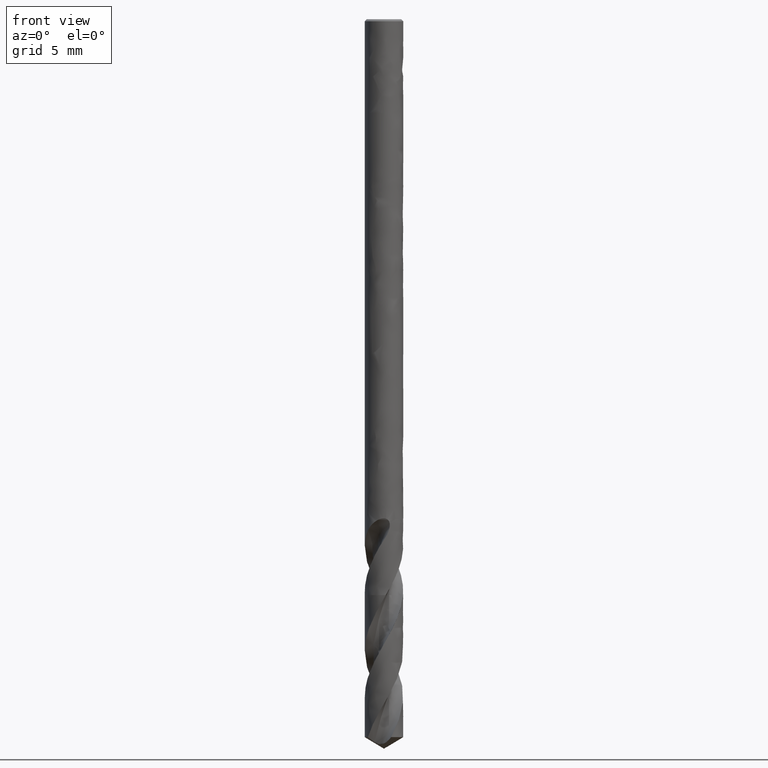
[diagram: clean part render]
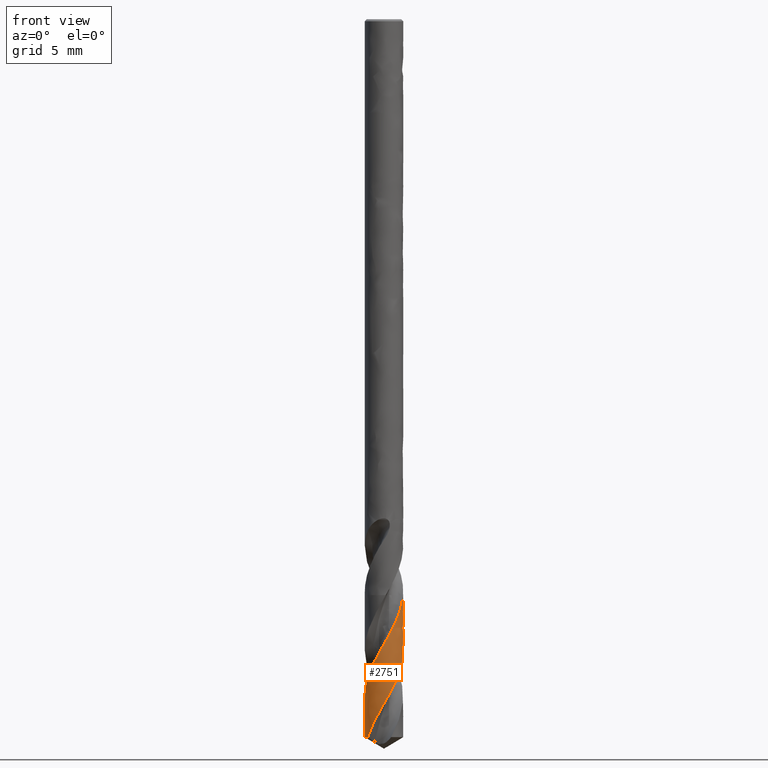
[diagram: same view with one face highlighted and labeled with its STEP entity id]
A machine part, front view. The second image highlights one B-rep face of the part: STEP entity #2751.
In plain terms, the highlighted face is a freeform B-spline surface patch.
Its self-contained STEP definition (entity closure, byte-faithful):
#1727 = VERTEX_POINT('', #1728);
#1728 = CARTESIAN_POINT('', (0.993616073432345, -0.112814443299109, -30.));
#1734 = EDGE_CURVE('', #1735, #1727, #1737, .T.);
#1735 = VERTEX_POINT('', #1736);
#1736 = CARTESIAN_POINT('', (-0.0892022746884696, 0.99601353112817, -30.));
#1737 = CIRCLE('', #1738, 1.);
#1738 = AXIS2_PLACEMENT_3D('', #1739, #1740, #1741);
#1739 = CARTESIAN_POINT('', (4.16333634234435E-17, 2.08677037926169E-15, -30.));
#1740 = DIRECTION('', (3.74939945665465E-33, 6.12323399573677E-17, -1.));
#1741 = DIRECTION('', (-1., -1.88567840583293E-16, -1.52958495762775E-32));
#2527 = EDGE_CURVE('', #1735, #2528, #2530, .T.);
#2528 = VERTEX_POINT('', #2529);
#2529 = CARTESIAN_POINT('', (-0.839977441181837, -0.542621321278118, -37.3991393809724));
#2530 = B_SPLINE_CURVE_WITH_KNOTS('', 3, (#2531, #2532, #2533, #2534, #2535, #2536, #2537, #2538, #2539, #2540, #2541, #2542, #2543, #2544, #2545, #2546, #2547, #2548, #2549, #2550, #2551, #2552, #2553, #2554, #2555, #2556, #2557, #2558, #2559, #2560, #2561, #2562, #2563, #2564, #2565, #2566, #2567, #2568, #2569, #2570, #2571, #2572, #2573, #2574, #2575, #2576, #2577, #2578, #2579, #2580, #2581, #2582, #2583, #2584, #2585, #2586, #2587, #2588, #2589, #2590, #2591, #2592, #2593, #2594, #2595, #2596, #2597, #2598, #2599, #2600, #2601, #2602, #2603, #2604, #2605, #2606, #2607, #2608, #2609, #2610, #2611, #2612, #2613, #2614, #2615, #2616, #2617, #2618, #2619, #2620, #2621, #2622, #2623, #2624, #2625, #2626, #2627, #2628, #2629, #2630, #2631, #2632, #2633, #2634, #2635, #2636), .UNSPECIFIED., .F., .U., (4, 3, 3, 3, 3, 3, 3, 3, 3, 3, 3, 3, 3, 3, 3, 3, 3, 3, 3, 3, 3, 3, 3, 3, 3, 3, 3, 3, 3, 3, 3, 3, 3, 3, 3, 4), (2.97669446461167, 3.15364905319043, 3.19258730418406, 3.48914147681884, 3.78546157126732, 4.08156162070981, 4.37745204709669, 4.67314080025369, 4.96863289335033, 5.26393132598247, 5.55903703589848, 5.85394856897462, 6.14866267888719, 6.27982892414923, 6.30576980557412, 6.33171729404927, 6.62828182424694, 6.92461325520883, 7.22072584724964, 7.51663016142348, 7.8123340024352, 8.10784282046592, 8.40315954869738, 8.69828527990067, 8.99321889331769, 9.28795715468895, 9.41912876083279, 9.47747288268123, 9.50342483867528, 9.79997830267006, 10.096301130146, 10.3924072512718, 10.688307181646, 10.9840085500274, 11.2795167071484, 11.496949580724), .UNSPECIFIED.);
#2531 = CARTESIAN_POINT('', (-0.0892022746884696, 0.99601353112817, -30.));
#2532 = CARTESIAN_POINT('', (-0.059957842391235, 0.998632642015079, -30.0511577705177));
#2533 = CARTESIAN_POINT('', (-0.0305906427086898, 0.999963037003665, -30.1023330930471));
#2534 = CARTESIAN_POINT('', (-0.00123316522496211, 0.999999239651516, -30.1534931482828));
#2535 = CARTESIAN_POINT('', (0.00522684712047916, 1.00000720592015, -30.1647507431698));
#2536 = CARTESIAN_POINT('', (0.0116869132965708, 0.999952571533377, -30.1760085254703));
#2537 = CARTESIAN_POINT('', (0.0181456684873322, 0.999835353803391, -30.1872662342511));
#2538 = CARTESIAN_POINT('', (0.0673356231712245, 0.998942622207929, -30.2730050753155));
#2539 = CARTESIAN_POINT('', (0.116486497620108, 0.994409491159285, -30.3588049468948));
#2540 = CARTESIAN_POINT('', (0.164999118670596, 0.986293714284914, -30.4445502513908));
#2541 = CARTESIAN_POINT('', (0.213473447404215, 0.978184343411558, -30.5302278748112));
#2542 = CARTESIAN_POINT('', (0.26137487109197, 0.966487250067769, -30.6159663155297));
#2543 = CARTESIAN_POINT('', (0.308121052008433, 0.951347159195433, -30.7016503269625));
#2544 = CARTESIAN_POINT('', (0.354832519573177, 0.936218311237261, -30.7872707101123));
#2545 = CARTESIAN_POINT('', (0.400452169392193, 0.917631622836501, -30.8729517751763));
#2546 = CARTESIAN_POINT('', (0.444426886355997, 0.895815127514703, -30.9585786287513));
#2547 = CARTESIAN_POINT('', (0.488370471563637, 0.874014077108975, -31.044144863077));
#2548 = CARTESIAN_POINT('', (0.530729515321001, 0.848959019028924, -31.1297715621984));
#2549 = CARTESIAN_POINT('', (0.570991804114125, 0.820955759852217, -31.215344165951));
#2550 = CARTESIAN_POINT('', (0.611226650904742, 0.792971587158957, -31.3008584450609));
#2551 = CARTESIAN_POINT('', (0.649420519804618, 0.762006462942727, -31.3864330597638));
#2552 = CARTESIAN_POINT('', (0.685112895614836, 0.728436902045921, -31.4719537452119));
#2553 = CARTESIAN_POINT('', (0.72078153273122, 0.694889667976909, -31.5574175515836));
#2554 = CARTESIAN_POINT('', (0.753998845217947, 0.658697434787189, -31.642941506857));
#2555 = CARTESIAN_POINT('', (0.784365438441386, 0.620299007720193, -31.7284117449621));
#2556 = CARTESIAN_POINT('', (0.814712129918935, 0.581925746325632, -31.8138259673348));
#2557 = CARTESIAN_POINT('', (0.842251717208539, 0.541298803474586, -31.8993001347714));
#2558 = CARTESIAN_POINT('', (0.866654196388625, 0.498909314286665, -31.9847206737153));
#2559 = CARTESIAN_POINT('', (0.891040749605183, 0.456547490052529, -32.0700854640455));
#2560 = CARTESIAN_POINT('', (0.91232615160676, 0.412370131130284, -32.155510108261));
#2561 = CARTESIAN_POINT('', (0.930256493114442, 0.366909875880225, -32.2408813188906));
#2562 = CARTESIAN_POINT('', (0.948175036622511, 0.321479533059532, -32.3261963560496));
#2563 = CARTESIAN_POINT('', (0.962766355339618, 0.274708669105916, -32.4115710371212));
#2564 = CARTESIAN_POINT('', (0.97385749617833, 0.227159805285684, -32.4968924175601));
#2565 = CARTESIAN_POINT('', (0.984941212254473, 0.179642772187778, -32.5821566811522));
#2566 = CARTESIAN_POINT('', (0.992543891378917, 0.131286942918029, -32.6674804397473));
#2567 = CARTESIAN_POINT('', (0.996576777691899, 0.0826724026821075, -32.752751033436));
#2568 = CARTESIAN_POINT('', (0.998371664795877, 0.0610358861618164, -32.790701790557));
#2569 = CARTESIAN_POINT('', (0.99946169931817, 0.0393392395828904, -32.8286581811774));
#2570 = CARTESIAN_POINT('', (0.999844509017083, 0.0176339952475666, -32.8666102069202));
#2571 = CARTESIAN_POINT('', (0.999920217679689, 0.0133413270502257, -32.8741160175627));
#2572 = CARTESIAN_POINT('', (0.99996828064533, 0.00904818947279218, -32.8816218895342));
#2573 = CARTESIAN_POINT('', (0.999988694999421, 0.00475498405409354, -32.8891277469764));
#2574 = CARTESIAN_POINT('', (1.00000911455298, 0.000460685171240299, -32.8966355161338));
#2575 = CARTESIAN_POINT('', (1.0000018716183, -0.00383372549057975, -32.9041433475467));
#2576 = CARTESIAN_POINT('', (0.999966968512215, -0.00812784623932923, -32.9116511652285));
#2577 = CARTESIAN_POINT('', (0.999568046540746, -0.0572071204698351, -32.9974611050126));
#2578 = CARTESIAN_POINT('', (0.995545903297117, -0.106283464524351, -33.0833316025062));
#2579 = CARTESIAN_POINT('', (0.987951811353904, -0.154761811964516, -33.1691480325211));
#2580 = CARTESIAN_POINT('', (0.98036368835454, -0.203202055502867, -33.2548970109624));
#2581 = CARTESIAN_POINT('', (0.969199287043314, -0.251108905708884, -33.3407063076189));
#2582 = CARTESIAN_POINT('', (0.954596141614375, -0.297903015115569, -33.4264616781613));
#2583 = CARTESIAN_POINT('', (0.940003780517626, -0.344662567363121, -33.5121537188951));
#2584 = CARTESIAN_POINT('', (0.921958684945342, -0.39037223192891, -33.597905923278));
#2585 = CARTESIAN_POINT('', (0.900681118766173, -0.434480750204658, -33.6836043618105));
#2586 = CARTESIAN_POINT('', (0.879418518671586, -0.478558243700141, -33.7692425222986));
#2587 = CARTESIAN_POINT('', (0.854900258221188, -0.521094390650973, -33.8549406757085));
#2588 = CARTESIAN_POINT('', (0.827424163137889, -0.561577469504964, -33.940585305738));
#2589 = CARTESIAN_POINT('', (0.799966682922302, -0.602033121348122, -34.0261719121126));
#2590 = CARTESIAN_POINT('', (0.769519503583669, -0.640491394344863, -34.1118182862553));
#2591 = CARTESIAN_POINT('', (0.73645097930782, -0.676490912781946, -34.1974112039008));
#2592 = CARTESIAN_POINT('', (0.70340426442802, -0.712466688769908, -34.2829476711943));
#2593 = CARTESIAN_POINT('', (0.667696795964934, -0.746033664712316, -34.3685438350439));
#2594 = CARTESIAN_POINT('', (0.629759189634828, -0.776790424162451, -34.4540867414324));
#2595 = CARTESIAN_POINT('', (0.591846243912933, -0.807527190775188, -34.5395740423069));
#2596 = CARTESIAN_POINT('', (0.551656833289476, -0.835497328913671, -34.6251208177205));
#2597 = CARTESIAN_POINT('', (0.50967435729794, -0.860367392172047, -34.7106145049089));
#2598 = CARTESIAN_POINT('', (0.467719033605556, -0.885221370638338, -34.7960528987847));
#2599 = CARTESIAN_POINT('', (0.423918568818367, -0.907011541870189, -34.8815505958154));
#2600 = CARTESIAN_POINT('', (0.378798346902376, -0.925479233902111, -34.9669953060383));
#2601 = CARTESIAN_POINT('', (0.333707496864992, -0.943934904033753, -35.0523843943793));
#2602 = CARTESIAN_POINT('', (0.287240445089738, -0.959096252888071, -35.1378326819934));
#2603 = CARTESIAN_POINT('', (0.239953220554197, -0.970784451845923, -35.2232282165702));
#2604 = CARTESIAN_POINT('', (0.192697317155452, -0.982464909015542, -35.3085671886135));
#2605 = CARTESIAN_POINT('', (0.144561248652486, -0.990691943615073, -35.3939651299149));
#2606 = CARTESIAN_POINT('', (0.0961195369275697, -0.995369797924784, -35.4793103809798));
#2607 = CARTESIAN_POINT('', (0.0745608254737136, -0.997451650685456, -35.5172928051377));
#2608 = CARTESIAN_POINT('', (0.0529327440262733, -0.998832888128954, -35.5552807671825));
#2609 = CARTESIAN_POINT('', (0.031286619596685, -0.999510453889408, -35.5932644860261));
#2610 = CARTESIAN_POINT('', (0.0216585898851218, -0.999811829929927, -35.6101593521151));
#2611 = CARTESIAN_POINT('', (0.012026186179537, -0.999974075913277, -35.6270547805432));
#2612 = CARTESIAN_POINT('', (0.00239389045436203, -0.999997134640139, -35.6439498872658));
#2613 = CARTESIAN_POINT('', (-0.001890635678892, -1.00000739135574, -35.6514649728011));
#2614 = CARTESIAN_POINT('', (-0.00617521045806727, -0.999990111629597, -35.6589801186264));
#2615 = CARTESIAN_POINT('', (-0.0104594341887832, -0.999945298622102, -35.66649524995));
#2616 = CARTESIAN_POINT('', (-0.0594153351684181, -0.999433219586225, -35.7523707896159));
#2617 = CARTESIAN_POINT('', (-0.108359610829806, -0.995316042999822, -35.8383063769854));
#2618 = CARTESIAN_POINT('', (-0.156702136089898, -0.987645908483834, -35.9241883894593));
#2619 = CARTESIAN_POINT('', (-0.20500706424495, -0.97998173920966, -36.0100036094968));
#2620 = CARTESIAN_POINT('', (-0.252773968762731, -0.968760194617047, -36.095878638987));
#2621 = CARTESIAN_POINT('', (-0.299428271040196, -0.954118813619077, -36.1817003355811));
#2622 = CARTESIAN_POINT('', (-0.346048454165736, -0.939488140133132, -36.2674592691853));
#2623 = CARTESIAN_POINT('', (-0.391618317434764, -0.921423629933053, -36.3532777880314));
#2624 = CARTESIAN_POINT('', (-0.435591208889937, -0.900144598794036, -36.4390430515423));
#2625 = CARTESIAN_POINT('', (-0.479533480229919, -0.878880385111026, -36.5247485932073));
#2626 = CARTESIAN_POINT('', (-0.521937736164438, -0.854378706493363, -36.6105136558408));
#2627 = CARTESIAN_POINT('', (-0.562296719621707, -0.826935547127282, -36.6962257047281));
#2628 = CARTESIAN_POINT('', (-0.602628620408936, -0.79951080333975, -36.7818802370246));
#2629 = CARTESIAN_POINT('', (-0.640970182542544, -0.769113071941467, -36.8675940475271));
#2630 = CARTESIAN_POINT('', (-0.676863981995641, -0.736108110182874, -36.9532549216528));
#2631 = CARTESIAN_POINT('', (-0.712734328441823, -0.703124713864778, -37.0388598249674));
#2632 = CARTESIAN_POINT('', (-0.746206244986732, -0.667495115233406, -37.1245239089774));
#2633 = CARTESIAN_POINT('', (-0.776881662965639, -0.629646632443739, -37.2101352209675));
#2634 = CARTESIAN_POINT('', (-0.7994524249516, -0.601797978607538, -37.2731274366747));
#2635 = CARTESIAN_POINT('', (-0.820529559685471, -0.572726628782893, -37.33614369523));
#2636 = CARTESIAN_POINT('', (-0.839977441181837, -0.542621321278118, -37.3991393809724));
#2751 = ADVANCED_FACE('', (#2752), #2846, .T.);
#2752 = FACE_OUTER_BOUND('', #2753, .T.);
#2753 = EDGE_LOOP('', (#2754, #2755, #2830, #2838, #2845));
#2754 = ORIENTED_EDGE('', *, *, #1734, .T.);
#2755 = ORIENTED_EDGE('', *, *, #2756, .T.);
#2756 = EDGE_CURVE('', #1727, #2757, #2759, .T.);
#2757 = VERTEX_POINT('', #2758);
#2758 = CARTESIAN_POINT('', (-1., 2.22209121984918E-15, -35.2895035759908));
#2759 = B_SPLINE_CURVE_WITH_KNOTS('', 3, (#2760, #2761, #2762, #2763, #2764, #2765, #2766, #2767, #2768, #2769, #2770, #2771, #2772, #2773, #2774, #2775, #2776, #2777, #2778, #2779, #2780, #2781, #2782, #2783, #2784, #2785, #2786, #2787, #2788, #2789, #2790, #2791, #2792, #2793, #2794, #2795, #2796, #2797, #2798, #2799, #2800, #2801, #2802, #2803, #2804, #2805, #2806, #2807, #2808, #2809, #2810, #2811, #2812, #2813, #2814, #2815, #2816, #2817, #2818, #2819, #2820, #2821, #2822, #2823, #2824, #2825, #2826, #2827, #2828, #2829), .UNSPECIFIED., .F., .U., (4, 3, 3, 3, 3, 3, 3, 3, 3, 3, 3, 3, 3, 3, 3, 3, 3, 3, 3, 3, 3, 3, 3, 4), (0.604559301757479, 0.675516919520297, 0.971868833646175, 1.26799678101179, 1.56391187966177, 1.85962272220562, 2.15513495872872, 2.45045201573912, 2.74557537163975, 3.04050399807513, 3.33523503820879, 3.53183247712422, 3.72934744780445, 3.92679278635589, 4.12417139428778, 4.42029637623948, 4.71621199223795, 5.01192644108138, 5.30744556557888, 5.60277264288082, 5.89790910315697, 6.19285418663742, 6.48760500570936, 6.69849233691129), .UNSPECIFIED.);
#2760 = CARTESIAN_POINT('', (0.993616073432345, -0.112814443299109, -30.));
#2761 = CARTESIAN_POINT('', (0.992284688398514, -0.124540650785098, -30.020497953192));
#2762 = CARTESIAN_POINT('', (0.990745107714797, -0.136247497727031, -30.041004675309));
#2763 = CARTESIAN_POINT('', (0.988999617415412, -0.147918074460725, -30.0615032975918));
#2764 = CARTESIAN_POINT('', (0.981709640558523, -0.196659814432095, -30.147115049254));
#2765 = CARTESIAN_POINT('', (0.970803188949761, -0.244883882920185, -30.23279069042));
#2766 = CARTESIAN_POINT('', (0.956418037555975, -0.292000920268372, -30.31841384857));
#2767 = CARTESIAN_POINT('', (0.942043757682163, -0.339082349106186, -30.4039722973646));
#2768 = CARTESIAN_POINT('', (0.924176925640213, -0.385121165236132, -30.4895945113947));
#2769 = CARTESIAN_POINT('', (0.903039842323831, -0.42955679854444, -30.5751645249789));
#2770 = CARTESIAN_POINT('', (0.881917951768133, -0.473960492727913, -30.6606730331644));
#2771 = CARTESIAN_POINT('', (0.857502369658181, -0.516822561580094, -30.7462450014317));
#2772 = CARTESIAN_POINT('', (0.830094340131869, -0.557622978795836, -30.8317649006505));
#2773 = CARTESIAN_POINT('', (0.802705229063633, -0.598395233425799, -30.9172257695539));
#2774 = CARTESIAN_POINT('', (0.772291525217272, -0.637162765324573, -31.0027499321521));
#2775 = CARTESIAN_POINT('', (0.739226293472523, -0.673457115961275, -31.0882222132026));
#2776 = CARTESIAN_POINT('', (0.706183269077514, -0.709727090499712, -31.173637089156));
#2777 = CARTESIAN_POINT('', (0.670448611993907, -0.743575180466406, -31.2591150334516));
#2778 = CARTESIAN_POINT('', (0.632458821393308, -0.774593983478948, -31.3445413948286));
#2779 = CARTESIAN_POINT('', (0.594494122236988, -0.805592299235437, -31.4299113339207));
#2780 = CARTESIAN_POINT('', (0.554226995076534, -0.833806170383818, -31.5153440546151));
#2781 = CARTESIAN_POINT('', (0.512147215559873, -0.858897682843695, -31.6007252505582));
#2782 = CARTESIAN_POINT('', (0.470095036548491, -0.883972737555215, -31.6860504442081));
#2783 = CARTESIAN_POINT('', (0.426177442424025, -0.905962461497888, -31.7714383423722));
#2784 = CARTESIAN_POINT('', (0.38092659414201, -0.924605283283302, -31.8567749624448));
#2785 = CARTESIAN_POINT('', (0.335705603454495, -0.943235804087975, -31.9420552753697));
#2786 = CARTESIAN_POINT('', (0.289093735203082, -0.958548335627557, -32.0273979935641));
#2787 = CARTESIAN_POINT('', (0.24165403013142, -0.970362473368279, -32.1126896497148));
#2788 = CARTESIAN_POINT('', (0.19424610710816, -0.982168696272749, -32.1979241650478));
#2789 = CARTESIAN_POINT('', (0.145949308127465, -0.990496735327608, -32.2832208623758));
#2790 = CARTESIAN_POINT('', (0.0973449560603867, -0.995250701848332, -32.3684666096666));
#2791 = CARTESIAN_POINT('', (0.0649239014873817, -0.99842178841675, -32.4253289462165));
#2792 = CARTESIAN_POINT('', (0.0323428163676362, -1.00000727567651, -32.482210683153));
#2793 = CARTESIAN_POINT('', (-0.000224178015936278, -0.999999974872137, -32.5390780438363));
#2794 = CARTESIAN_POINT('', (-0.0329431644701874, -0.999992639994484, -32.5962108078234));
#2795 = CARTESIAN_POINT('', (-0.0656667652657562, -0.998377597815101, -32.6533632279046));
#2796 = CARTESIAN_POINT('', (-0.0982187258961661, -0.995164851611929, -32.7105010697448));
#2797 = CARTESIAN_POINT('', (-0.130759210625245, -0.991953238033572, -32.767618768152));
#2798 = CARTESIAN_POINT('', (-0.163146937050656, -0.987143198283256, -32.824756072996));
#2799 = CARTESIAN_POINT('', (-0.195207757277741, -0.980761913768476, -32.8818788538617));
#2800 = CARTESIAN_POINT('', (-0.227257741906411, -0.974382785937021, -32.9389823289358));
#2801 = CARTESIAN_POINT('', (-0.258999597029082, -0.9664297813479, -32.9961053305562));
#2802 = CARTESIAN_POINT('', (-0.290262829311265, -0.956946962961013, -33.0532138948424));
#2803 = CARTESIAN_POINT('', (-0.337166717186024, -0.94271999351842, -33.138893253643));
#2804 = CARTESIAN_POINT('', (-0.383042888017705, -0.925028959208873, -33.224635393942));
#2805 = CARTESIAN_POINT('', (-0.427338126087848, -0.904091879175851, -33.3103261428346));
#2806 = CARTESIAN_POINT('', (-0.47160204658836, -0.883169602053715, -33.3959563067498));
#2807 = CARTESIAN_POINT('', (-0.514345130587005, -0.858978552625853, -33.4816490369329));
#2808 = CARTESIAN_POINT('', (-0.55505365543208, -0.831814546393357, -33.567290697826));
#2809 = CARTESIAN_POINT('', (-0.59573450611031, -0.804669006593716, -33.6528741384416));
#2810 = CARTESIAN_POINT('', (-0.634436910301153, -0.774519008588857, -33.7385198463778));
#2811 = CARTESIAN_POINT('', (-0.670697525615868, -0.741730968163494, -33.8241145274777));
#2812 = CARTESIAN_POINT('', (-0.706934190186894, -0.708964584787948, -33.9096526718573));
#2813 = CARTESIAN_POINT('', (-0.740779285922962, -0.673521211325888, -33.9952530303136));
#2814 = CARTESIAN_POINT('', (-0.771829472675611, -0.635829588104616, -34.0808026260123));
#2815 = CARTESIAN_POINT('', (-0.802859481034398, -0.598162459306668, -34.1662966261215));
#2816 = CARTESIAN_POINT('', (-0.831138534105032, -0.558201100293366, -34.2518525336392));
#2817 = CARTESIAN_POINT('', (-0.856331135239946, -0.516427136020817, -34.3373578950051));
#2818 = CARTESIAN_POINT('', (-0.881507475967097, -0.474680134493771, -34.4228080674671));
#2819 = CARTESIAN_POINT('', (-0.903634029866136, -0.431068761660533, -34.5083199320966));
#2820 = CARTESIAN_POINT('', (-0.922449984145839, -0.386116597350289, -34.5937813563246));
#2821 = CARTESIAN_POINT('', (-0.94125373750318, -0.341193581594436, -34.6791873643783));
#2822 = CARTESIAN_POINT('', (-0.956775408274284, -0.294873735068165, -34.7646549598932));
#2823 = CARTESIAN_POINT('', (-0.968833890722434, -0.24771130815482, -34.8500724240634));
#2824 = CARTESIAN_POINT('', (-0.980884430898984, -0.200579944586758, -34.93543362836));
#2825 = CARTESIAN_POINT('', (-0.989491941835549, -0.152546275947592, -35.0208561152369));
#2826 = CARTESIAN_POINT('', (-0.99455814049686, -0.10418303686986, -35.106228516435));
#2827 = CARTESIAN_POINT('', (-0.998182887387765, -0.0695802681668014, -35.1673104767961));
#2828 = CARTESIAN_POINT('', (-1., -0.0347819190354057, -35.2284158163191));
#2829 = CARTESIAN_POINT('', (-1., 2.21515232594527E-15, -35.2895035759908));
#2830 = ORIENTED_EDGE('', *, *, #2831, .F.);
#2831 = EDGE_CURVE('', #2832, #2757, #2834, .T.);
#2832 = VERTEX_POINT('', #2833);
#2833 = CARTESIAN_POINT('', (-1., 2.35126915664605E-15, -37.3991393809724));
#2834 = LINE('', #2835, #2836);
#2835 = CARTESIAN_POINT('', (-1., 2.35126915664605E-15, -37.3991393809724));
#2836 = VECTOR('', #2837, 2.10963580498161);
#2837 = DIRECTION('', (0., -1.29177936796869E-16, 2.10963580498161));
#2838 = ORIENTED_EDGE('', *, *, #2839, .F.);
#2839 = EDGE_CURVE('', #2528, #2832, #2840, .T.);
#2840 = CIRCLE('', #2841, 1.);
#2841 = AXIS2_PLACEMENT_3D('', #2842, #2843, #2844);
#2842 = CARTESIAN_POINT('', (1.40224312874369E-31, 2.29003681668868E-15, -37.3991393809724));
#2843 = DIRECTION('', (3.74939945665464E-33, 6.12323399573677E-17, -1.));
#2844 = DIRECTION('', (-1., 6.12323399573677E-17, 0.));
#2845 = ORIENTED_EDGE('', *, *, #2527, .F.);
#2846 = (
   BOUNDED_SURFACE ()
   B_SPLINE_SURFACE (1, 2, ((#2847, #2848, #2849, #2850, #2851, #2852, #2853, #2854, #2855), (#2856, #2857, #2858, #2859, #2860, #2861, #2862, #2863, #2864)), .UNSPECIFIED., .F., .F., .U.)
   B_SPLINE_SURFACE_WITH_KNOTS ((2, 2), (3, 2, 2, 2, 3), (-0.560633446902613, -0.251046025104602), (0.234486792349073, 0.25, 0.5, 0.75, 1.), .UNSPECIFIED.)
   GEOMETRIC_REPRESENTATION_ITEM ()
   RATIONAL_B_SPLINE_SURFACE (((0.96590589560114, 0.981825146707994, 1., 0.707106781186548, 1., 0.707106781186548, 1., 0.707106781186548, 1.), (0.96590589560114, 0.981825146707994, 1., 0.707106781186548, 1., 0.707106781186548, 1., 0.707106781186548, 1.)))
   REPRESENTATION_ITEM ('')
   SURFACE ()
);
#2847 = CARTESIAN_POINT('', (-0.0892022746884696, 0.996013531128171, -37.3991393809724));
#2848 = CARTESIAN_POINT('', (-0.0446902154205597, 1., -37.3991393809724));
#2849 = CARTESIAN_POINT('', (-2.08166817117217E-16, 1., -37.3991393809724));
#2850 = CARTESIAN_POINT('', (1., 1., -37.3991393809724));
#2851 = CARTESIAN_POINT('', (1., 2.85086951772737E-15, -37.3991393809724));
#2852 = CARTESIAN_POINT('', (1., -0.999999999999997, -37.3991393809724));
#2853 = CARTESIAN_POINT('', (4.13898223878839E-16, -0.999999999999997, -37.3991393809724));
#2854 = CARTESIAN_POINT('', (-1., -0.999999999999998, -37.3991393809724));
#2855 = CARTESIAN_POINT('', (-1., 2.35126915664605E-15, -37.3991393809724));
#2856 = CARTESIAN_POINT('', (-0.0892022746884696, 0.99601353112817, -30.));
#2857 = CARTESIAN_POINT('', (-0.0446902154205597, 1., -30.));
#2858 = CARTESIAN_POINT('', (-2.08166817117217E-16, 1., -30.));
#2859 = CARTESIAN_POINT('', (1., 1., -30.));
#2860 = CARTESIAN_POINT('', (1., 2.39780289975972E-15, -30.));
#2861 = CARTESIAN_POINT('', (1., -0.999999999999997, -30.));
#2862 = CARTESIAN_POINT('', (4.13898223878839E-16, -0.999999999999998, -30.));
#2863 = CARTESIAN_POINT('', (-1., -0.999999999999998, -30.));
#2864 = CARTESIAN_POINT('', (-1., 1.8982025386784E-15, -30.));